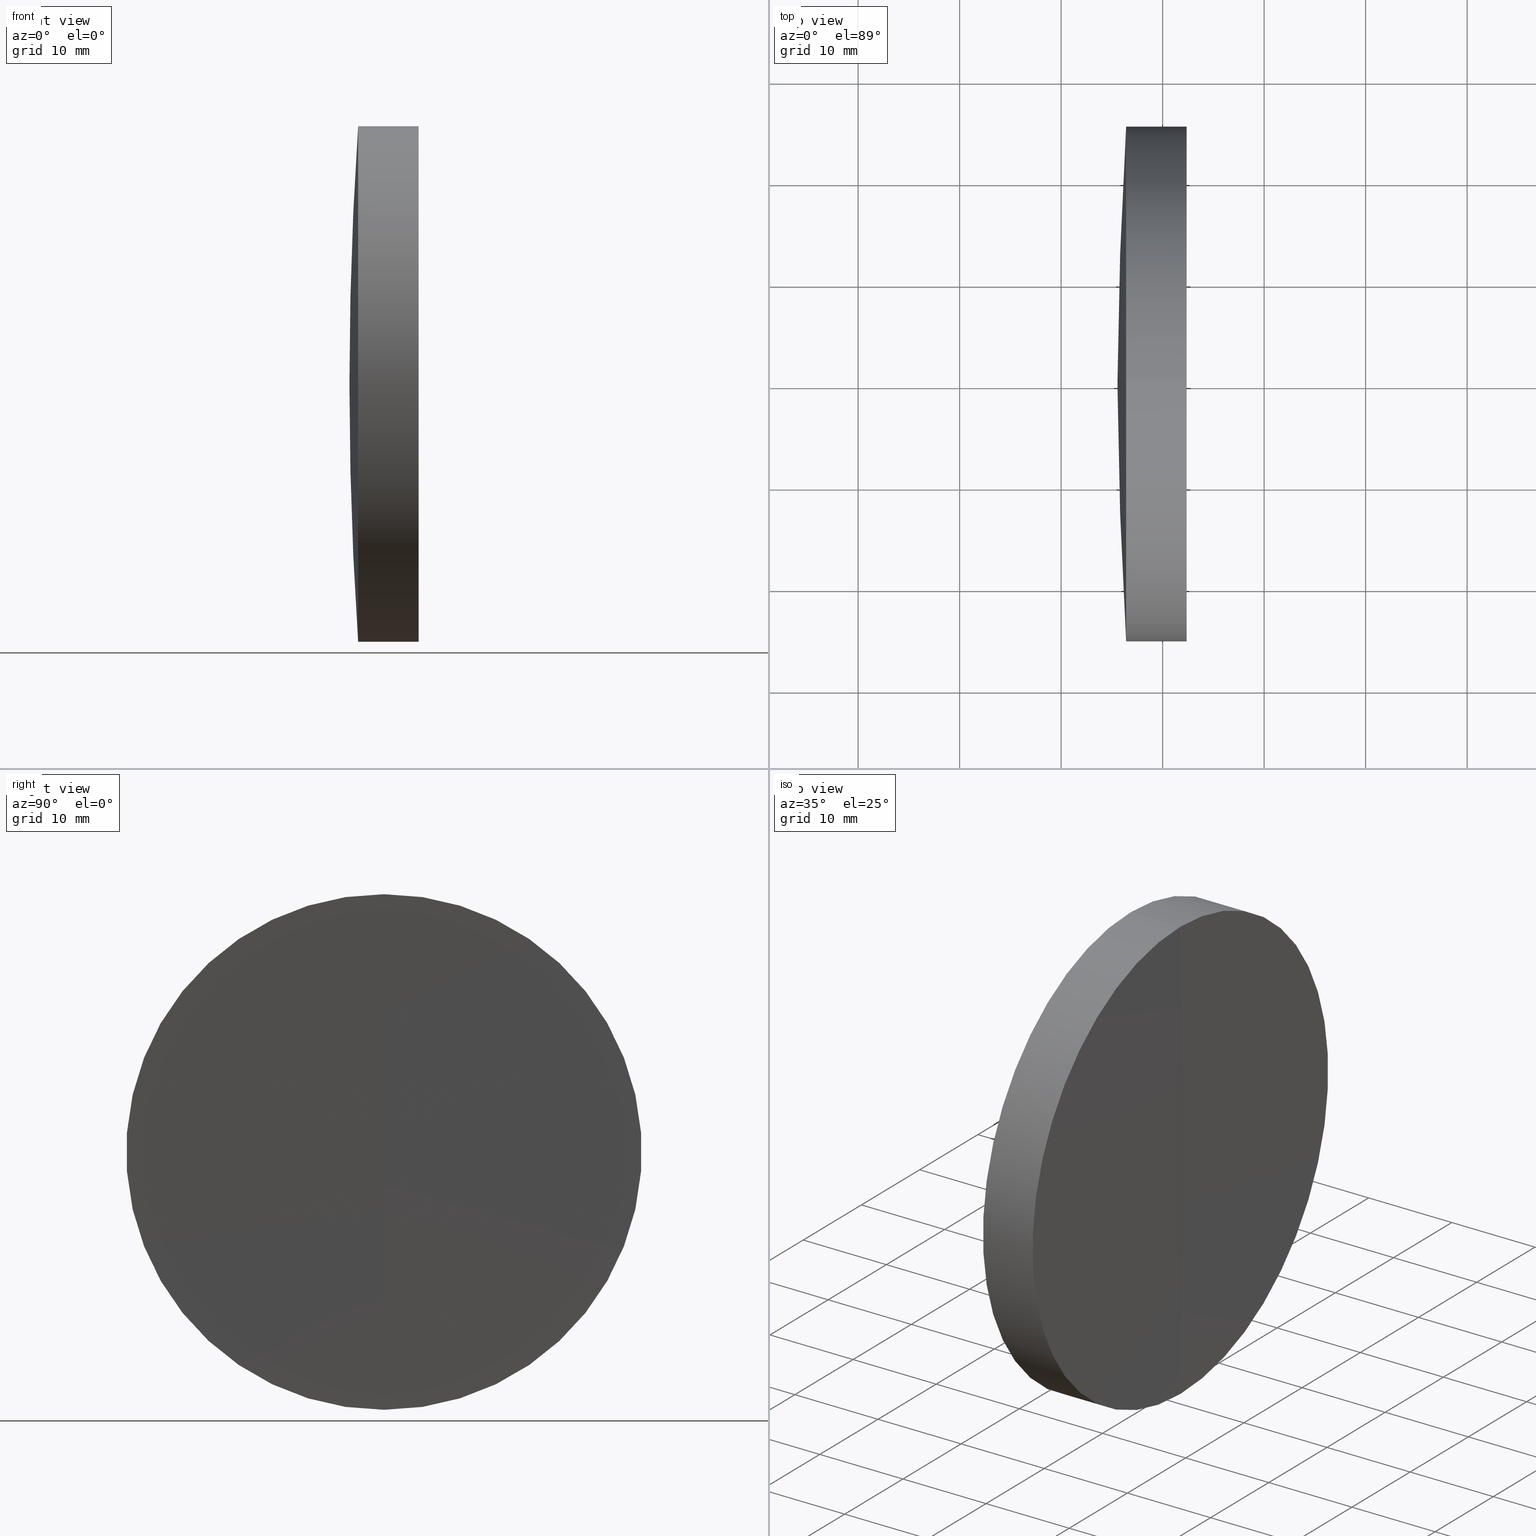
[diagram: canonical four-view strip — front | top / right | iso, engineering-drawing reading convention]
A machine part, canonical four-view strip (front | top / right | iso — engineering-drawing reading convention). The complete STEP part file that produces these views, byte-faithful:
ISO-10303-21;
HEADER;
FILE_DESCRIPTION (( 'STEP AP214' ),
    '1' );
FILE_NAME ('145142.STEP',
    '2019-06-05T05:54:46',
    ( 'user' ),
    ( '΢���й�' ),
    'SwSTEP 2.0',
    'SolidWorks 2016',
    '' );
FILE_SCHEMA (( 'AUTOMOTIVE_DESIGN' ));
ENDSEC;

DATA;
#1 = DIRECTION ( 'NONE',  ( 0.0000000000000000000, 0.0000000000000000000, -1.000000000000000000 ) ) ;
#2 = ORIENTED_EDGE ( 'NONE', *, *, #124, .F. ) ;
#3 = CARTESIAN_POINT ( 'NONE',  ( -402.0212655728769300, 0.0000000000000000000, 0.0000000000000000000 ) ) ;
#4 = AXIS2_PLACEMENT_3D ( 'NONE', #327, #51, #197 ) ;
#5 = ORIENTED_EDGE ( 'NONE', *, *, #267, .F. ) ;
#6 = DIRECTION ( 'NONE',  ( -1.000000000000000000, -0.0000000000000000000, -0.0000000000000000000 ) ) ;
#7 = CARTESIAN_POINT ( 'NONE',  ( -31.36118293043882600, 0.0000000000000000000, 25.39999999999999100 ) ) ;
#8 = CLOSED_SHELL ( 'NONE', ( #291, #273, #315, #86, #226, #343 ) ) ;
#9 = CARTESIAN_POINT ( 'NONE',  ( 2882.249075871704500, 0.0000000000000000000, 0.0000000000000000000 ) ) ;
#10 = CARTESIAN_POINT ( 'NONE',  ( 2882.249075871704500, 0.0000000000000000000, 0.0000000000000000000 ) ) ;
#11 = SPHERICAL_SURFACE ( 'NONE', #277, 291.1000000000000200 ) ;
#12 = AXIS2_PLACEMENT_3D ( 'NONE', #191, #257, #44 ) ;
#13 = DIRECTION ( 'NONE',  ( -1.000000000000000000, -0.0000000000000000000, -0.0000000000000000000 ) ) ;
#14 = CIRCLE ( 'NONE', #275, 25.39999999999983900 ) ;
#15 = CARTESIAN_POINT ( 'NONE',  ( -321.3509241282956700, 0.0000000000000000000, -5.558005932232330100E-015 ) ) ;
#16 = AXIS2_PLACEMENT_3D ( 'NONE', #240, #159, #233 ) ;
#17 =( NAMED_UNIT ( * ) PLANE_ANGLE_UNIT ( ) SI_UNIT ( $, .RADIAN. ) );
#18 = FACE_OUTER_BOUND ( 'NONE', #207, .T. ) ;
#19 = AXIS2_PLACEMENT_3D ( 'NONE', #66, #219, #36 ) ;
#20 = EDGE_CURVE ( 'NONE', #96, #270, #123, .T. ) ;
#21 = VECTOR ( 'NONE', #330, 1000.000000000000000 ) ;
#22 = PRESENTATION_LAYER_ASSIGNMENT (  '', '', ( #29 ) ) ;
#23 = APPLICATION_PROTOCOL_DEFINITION ( 'draft international standard', 'automotive_design', 1998, #39 ) ;
#24 = DIRECTION ( 'NONE',  ( 0.0000000000000000000, 0.0000000000000000000, 1.000000000000000000 ) ) ;
#25 = ORIENTED_EDGE ( 'NONE', *, *, #193, .T. ) ;
#26 =( LENGTH_UNIT ( ) NAMED_UNIT ( * ) SI_UNIT ( .MILLI., .METRE. ) );
#27 = FACE_OUTER_BOUND ( 'NONE', #167, .T. ) ;
#28 = COLOUR_RGB ( '',1.000000000000000000, 1.000000000000000000, 1.000000000000000000 ) ;
#29 = STYLED_ITEM ( 'NONE', ( #309 ), #285 ) ;
#30 = DIRECTION ( 'NONE',  ( 0.0000000000000000000, 0.0000000000000000000, 1.000000000000000000 ) ) ;
#31 = ORIENTED_EDGE ( 'NONE', *, *, #63, .T. ) ;
#32 = FILL_AREA_STYLE ('',( #245 ) ) ;
#33 = CIRCLE ( 'NONE', #201, 376.8000000000000100 ) ;
#34 = AXIS2_PLACEMENT_3D ( 'NONE', #129, #103, #331 ) ;
#35 = DIRECTION ( 'NONE',  ( 0.0000000000000000000, 1.000000000000000000, -0.0000000000000000000 ) ) ;
#36 = DIRECTION ( 'NONE',  ( 0.0000000000000000000, 0.0000000000000000000, 1.000000000000000000 ) ) ;
#37 = MECHANICAL_DESIGN_GEOMETRIC_PRESENTATION_REPRESENTATION (  '', ( #56 ), #246 ) ;
#38 = ORIENTED_EDGE ( 'NONE', *, *, #193, .F. ) ;
#39 = APPLICATION_CONTEXT ( 'automotive_design' ) ;
#40 = ORIENTED_EDGE ( 'NONE', *, *, #101, .T. ) ;
#41 = EDGE_CURVE ( 'NONE', #301, #227, #117, .T. ) ;
#42 = CARTESIAN_POINT ( 'NONE',  ( -31.36118293043887900, 0.0000000000000000000, 0.0000000000000000000 ) ) ;
#43 = DIRECTION ( 'NONE',  ( -1.000000000000000000, -0.0000000000000000000, -0.0000000000000000000 ) ) ;
#44 = DIRECTION ( 'NONE',  ( 0.0000000000000000000, 0.0000000000000000000, 1.000000000000000000 ) ) ;
#45 = ORIENTED_EDGE ( 'NONE', *, *, #298, .F. ) ;
#46 = UNCERTAINTY_MEASURE_WITH_UNIT (LENGTH_MEASURE( 1.000000000000000100E-005 ), #194, 'distance_accuracy_value', 'NONE');
#47 = DIRECTION ( 'NONE',  ( 0.0000000000000000000, -1.000000000000000000, 0.0000000000000000000 ) ) ;
#48 = ADVANCED_FACE ( 'NONE', ( #18 ), #108, .T. ) ;
#49 = AXIS2_PLACEMENT_3D ( 'NONE', #70, #6, #261 ) ;
#50 = CIRCLE ( 'NONE', #19, 25.39999999999999100 ) ;
#51 = DIRECTION ( 'NONE',  ( -1.000000000000000000, -0.0000000000000000000, -0.0000000000000000000 ) ) ;
#52 = FACE_OUTER_BOUND ( 'NONE', #289, .T. ) ;
#53 = ADVANCED_FACE ( 'NONE', ( #138 ), #169, .T. ) ;
#54 = ORIENTED_EDGE ( 'NONE', *, *, #63, .F. ) ;
#55 = CIRCLE ( 'NONE', #251, 291.1000000000000200 ) ;
#56 = STYLED_ITEM ( 'NONE', ( #310 ), #242 ) ;
#57 = VERTEX_POINT ( 'NONE', #280 ) ;
#58 = ORIENTED_EDGE ( 'NONE', *, *, #237, .T. ) ;
#59 = UNCERTAINTY_MEASURE_WITH_UNIT (LENGTH_MEASURE( 1.000000000000000100E-005 ), #79, 'distance_accuracy_value', 'NONE');
#60 = ORIENTED_EDGE ( 'NONE', *, *, #41, .T. ) ;
#61 = CARTESIAN_POINT ( 'NONE',  ( -402.0212655728769300, 0.0000000000000000000, 0.0000000000000000000 ) ) ;
#62 = AXIS2_PLACEMENT_3D ( 'NONE', #188, #77, #303 ) ;
#63 = EDGE_CURVE ( 'NONE', #274, #221, #55, .T. ) ;
#64 = DIRECTION ( 'NONE',  ( 0.0000000000000000000, 0.0000000000000000000, 1.000000000000000000 ) ) ;
#65 =( GEOMETRIC_REPRESENTATION_CONTEXT ( 3 ) GLOBAL_UNCERTAINTY_ASSIGNED_CONTEXT ( ( #59 ) ) GLOBAL_UNIT_ASSIGNED_CONTEXT ( ( #79, #17, #137 ) ) REPRESENTATION_CONTEXT ( 'NONE', 'WORKASPACE' ) );
#66 = CARTESIAN_POINT ( 'NONE',  ( -31.36118293043882600, 0.0000000000000000000, 0.0000000000000000000 ) ) ;
#67 = VERTEX_POINT ( 'NONE', #241 ) ;
#68 = CARTESIAN_POINT ( 'NONE',  ( -321.3509241282956700, 0.0000000000000000000, -5.558005932232330100E-015 ) ) ;
#69 = EDGE_CURVE ( 'NONE', #250, #57, #14, .T. ) ;
#70 = CARTESIAN_POINT ( 'NONE',  ( -151.1284751181453600, 0.0000000000000000000, 0.0000000000000000000 ) ) ;
#71 = CARTESIAN_POINT ( 'NONE',  ( -321.3509241282956700, 0.0000000000000000000, -5.558005932232330100E-015 ) ) ;
#72 = SPHERICAL_SURFACE ( 'NONE', #122, 2910.000000000000000 ) ;
#73 = EDGE_LOOP ( 'NONE', ( #45, #60, #113 ) ) ;
#74 = SURFACE_SIDE_STYLE ('',( #252 ) ) ;
#75 = DIRECTION ( 'NONE',  ( -0.0000000000000000000, -1.000000000000000000, -0.0000000000000000000 ) ) ;
#76 = UNCERTAINTY_MEASURE_WITH_UNIT (LENGTH_MEASURE( 1.000000000000000100E-005 ), #297, 'distance_accuracy_value', 'NONE');
#77 = DIRECTION ( 'NONE',  ( 0.0000000000000000000, -1.000000000000000000, 0.0000000000000000000 ) ) ;
#78 = AXIS2_PLACEMENT_3D ( 'NONE', #68, #304, #111 ) ;
#79 =( LENGTH_UNIT ( ) NAMED_UNIT ( * ) SI_UNIT ( .MILLI., .METRE. ) );
#80 = ADVANCED_FACE ( 'NONE', ( #160 ), #11, .T. ) ;
#81 = EDGE_CURVE ( 'NONE', #250, #93, #184, .T. ) ;
#82 = DIRECTION ( 'NONE',  ( 0.0000000000000000000, 0.0000000000000000000, 1.000000000000000000 ) ) ;
#83 = CIRCLE ( 'NONE', #228, 25.39999999999983900 ) ;
#84 = VERTEX_POINT ( 'NONE', #263 ) ;
#85 = DIRECTION ( 'NONE',  ( 0.0000000000000000000, 0.0000000000000000000, 1.000000000000000000 ) ) ;
#86 = ADVANCED_FACE ( 'NONE', ( #115 ), #147, .F. ) ;
#87 = AXIS2_PLACEMENT_3D ( 'NONE', #319, #322, #85 ) ;
#88 = AXIS2_PLACEMENT_3D ( 'NONE', #109, #336, #292 ) ;
#89 = ORIENTED_EDGE ( 'NONE', *, *, #112, .T. ) ;
#90 = ORIENTED_EDGE ( 'NONE', *, *, #237, .F. ) ;
#91 = PRODUCT ( '145142', '145142', '', ( #205 ) ) ;
#92 = EDGE_LOOP ( 'NONE', ( #90, #178, #175, #165 ) ) ;
#93 = VERTEX_POINT ( 'NONE', #337 ) ;
#94 = CARTESIAN_POINT ( 'NONE',  ( -33.59384532777775700, 3.110602869834250000E-015, -25.39999999999978500 ) ) ;
#95 = DIRECTION ( 'NONE',  ( 0.0000000000000000000, 1.000000000000000000, 0.0000000000000000000 ) ) ;
#96 = VERTEX_POINT ( 'NONE', #314 ) ;
#97 = CARTESIAN_POINT ( 'NONE',  ( 342.3490758717043700, 0.0000000000000000000, -7.663786165743663600E-015 ) ) ;
#98 = DIRECTION ( 'NONE',  ( 0.0000000000000000000, -1.224646799147353200E-016, 1.000000000000000000 ) ) ;
#99 = PRESENTATION_LAYER_ASSIGNMENT (  '', '', ( #56 ) ) ;
#100 = SURFACE_STYLE_USAGE ( .BOTH. , #74 ) ;
#101 = EDGE_CURVE ( 'NONE', #274, #143, #157, .T. ) ;
#102 = EDGE_LOOP ( 'NONE', ( #54, #40, #332 ) ) ;
#103 = DIRECTION ( 'NONE',  ( 0.0000000000000000000, -1.000000000000000000, -1.224646799147353200E-016 ) ) ;
#104 = CARTESIAN_POINT ( 'NONE',  ( -151.1284751181453600, 0.0000000000000000000, 25.39999999999991700 ) ) ;
#105 = SPHERICAL_SURFACE ( 'NONE', #345, 2910.000000000000000 ) ;
#106 = AXIS2_PLACEMENT_3D ( 'NONE', #269, #216, #82 ) ;
#107 = FACE_OUTER_BOUND ( 'NONE', #92, .T. ) ;
#108 = SPHERICAL_SURFACE ( 'NONE', #16, 376.8000000000000100 ) ;
#109 = CARTESIAN_POINT ( 'NONE',  ( -321.3509241282956700, 0.0000000000000000000, -5.558005932232330100E-015 ) ) ;
#110 = AXIS2_PLACEMENT_3D ( 'NONE', #61, #243, #236 ) ;
#111 = DIRECTION ( 'NONE',  ( 0.0000000000000000000, 0.0000000000000000000, -1.000000000000000000 ) ) ;
#112 = EDGE_CURVE ( 'NONE', #221, #301, #244, .T. ) ;
#113 = ORIENTED_EDGE ( 'NONE', *, *, #247, .T. ) ;
#114 = CARTESIAN_POINT ( 'NONE',  ( 2882.249075871704500, 0.0000000000000000000, 0.0000000000000000000 ) ) ;
#115 = FACE_OUTER_BOUND ( 'NONE', #238, .T. ) ;
#116 = DIRECTION ( 'NONE',  ( 0.0000000000000000000, 0.0000000000000000000, 1.000000000000000000 ) ) ;
#117 = CIRCLE ( 'NONE', #146, 25.39999999999999100 ) ;
#118 = CARTESIAN_POINT ( 'NONE',  ( -33.59384532777775700, 0.0000000000000000000, 25.39999999999977800 ) ) ;
#119 = ORIENTED_EDGE ( 'NONE', *, *, #140, .T. ) ;
#120 = CIRCLE ( 'NONE', #78, 291.0999999999999700 ) ;
#121 = VECTOR ( 'NONE', #131, 1000.000000000000000 ) ;
#122 = AXIS2_PLACEMENT_3D ( 'NONE', #9, #75, #324 ) ;
#123 = CIRCLE ( 'NONE', #255, 25.39999999999998800 ) ;
#124 = EDGE_CURVE ( 'NONE', #143, #227, #339, .T. ) ;
#125 = ADVANCED_FACE ( 'NONE', ( #27 ), #335, .T. ) ;
#126 = SHAPE_DEFINITION_REPRESENTATION ( #224, #161 ) ;
#127 = DIRECTION ( 'NONE',  ( 1.000000000000000000, 0.0000000000000000000, 0.0000000000000000000 ) ) ;
#128 = LINE ( 'NONE', #307, #121 ) ;
#129 = CARTESIAN_POINT ( 'NONE',  ( 2882.249075871704500, 0.0000000000000000000, 0.0000000000000000000 ) ) ;
#130 = ORIENTED_EDGE ( 'NONE', *, *, #41, .F. ) ;
#131 = DIRECTION ( 'NONE',  ( -1.000000000000000000, -0.0000000000000000000, -0.0000000000000000000 ) ) ;
#132 =( NAMED_UNIT ( * ) SI_UNIT ( $, .STERADIAN. ) SOLID_ANGLE_UNIT ( ) );
#133 = EDGE_LOOP ( 'NONE', ( #206, #89, #149, #2 ) ) ;
#134 = CARTESIAN_POINT ( 'NONE',  ( -321.3509241282956700, 0.0000000000000000000, -5.558005932232330100E-015 ) ) ;
#135 = STYLED_ITEM ( 'NONE', ( #313 ), #161 ) ;
#136 = CARTESIAN_POINT ( 'NONE',  ( -27.64006978316091400, 0.0000000000000000000, 0.0000000000000000000 ) ) ;
#137 =( NAMED_UNIT ( * ) SI_UNIT ( $, .STERADIAN. ) SOLID_ANGLE_UNIT ( ) );
#138 = FACE_OUTER_BOUND ( 'NONE', #288, .T. ) ;
#139 = DIRECTION ( 'NONE',  ( 0.0000000000000000000, 0.0000000000000000000, 1.000000000000000000 ) ) ;
#140 = EDGE_CURVE ( 'NONE', #270, #96, #346, .T. ) ;
#141 = FACE_OUTER_BOUND ( 'NONE', #73, .T. ) ;
#142 = CARTESIAN_POINT ( 'NONE',  ( -31.36118293043882600, 3.110602869834276100E-015, -25.39999999999999100 ) ) ;
#143 = VERTEX_POINT ( 'NONE', #7 ) ;
#144 = DIRECTION ( 'NONE',  ( -1.000000000000000000, -0.0000000000000000000, -0.0000000000000000000 ) ) ;
#145 = MECHANICAL_DESIGN_GEOMETRIC_PRESENTATION_REPRESENTATION (  '', ( #135 ), #171 ) ;
#146 = AXIS2_PLACEMENT_3D ( 'NONE', #284, #214, #299 ) ;
#147 = SPHERICAL_SURFACE ( 'NONE', #12, 291.0999999999999700 ) ;
#148 = DIRECTION ( 'NONE',  ( 0.0000000000000000000, 1.000000000000000000, 0.0000000000000000000 ) ) ;
#149 = ORIENTED_EDGE ( 'NONE', *, *, #338, .F. ) ;
#150 = ORIENTED_EDGE ( 'NONE', *, *, #112, .F. ) ;
#151 = PRESENTATION_LAYER_ASSIGNMENT (  '', '', ( #135 ) ) ;
#152 = ORIENTED_EDGE ( 'NONE', *, *, #172, .T. ) ;
#153 = ADVANCED_FACE ( 'NONE', ( #141 ), #256, .T. ) ;
#154 = DIRECTION ( 'NONE',  ( 0.0000000000000000000, 1.000000000000000000, 0.0000000000000000000 ) ) ;
#155 = ORIENTED_EDGE ( 'NONE', *, *, #81, .F. ) ;
#156 =( NAMED_UNIT ( * ) SI_UNIT ( $, .STERADIAN. ) SOLID_ANGLE_UNIT ( ) );
#157 = CIRCLE ( 'NONE', #187, 291.1000000000000200 ) ;
#158 = ORIENTED_EDGE ( 'NONE', *, *, #247, .F. ) ;
#159 = DIRECTION ( 'NONE',  ( 0.0000000000000000000, 1.000000000000000000, 0.0000000000000000000 ) ) ;
#160 = FACE_OUTER_BOUND ( 'NONE', #102, .T. ) ;
#161 = ADVANCED_BREP_SHAPE_REPRESENTATION ( '145142', ( #242, #285, #204 ), #65 ) ;
#162 = APPLICATION_CONTEXT ( 'automotive_design' ) ;
#163 = ORIENTED_EDGE ( 'NONE', *, *, #20, .T. ) ;
#164 = VECTOR ( 'NONE', #144, 1000.000000000000000 ) ;
#165 = ORIENTED_EDGE ( 'NONE', *, *, #20, .F. ) ;
#166 = SURFACE_SIDE_STYLE ('',( #268 ) ) ;
#167 = EDGE_LOOP ( 'NONE', ( #150, #152, #213, #130 ) ) ;
#168 = SURFACE_STYLE_FILL_AREA ( #32 ) ;
#169 = SPHERICAL_SURFACE ( 'NONE', #88, 291.1000000000000200 ) ;
#170 = DIRECTION ( 'NONE',  ( 0.0000000000000000000, 0.0000000000000000000, 1.000000000000000000 ) ) ;
#171 =( GEOMETRIC_REPRESENTATION_CONTEXT ( 3 ) GLOBAL_UNCERTAINTY_ASSIGNED_CONTEXT ( ( #318 ) ) GLOBAL_UNIT_ASSIGNED_CONTEXT ( ( #26, #293, #156 ) ) REPRESENTATION_CONTEXT ( 'NONE', 'WORKASPACE' ) );
#172 = EDGE_CURVE ( 'NONE', #221, #143, #50, .T. ) ;
#173 = CIRCLE ( 'NONE', #62, 376.8000000000000100 ) ;
#174 = ORIENTED_EDGE ( 'NONE', *, *, #338, .T. ) ;
#175 = ORIENTED_EDGE ( 'NONE', *, *, #267, .T. ) ;
#176 = CIRCLE ( 'NONE', #283, 2910.000000000000000 ) ;
#177 = ORIENTED_EDGE ( 'NONE', *, *, #287, .F. ) ;
#178 = ORIENTED_EDGE ( 'NONE', *, *, #287, .T. ) ;
#179 =( GEOMETRIC_REPRESENTATION_CONTEXT ( 3 ) GLOBAL_UNCERTAINTY_ASSIGNED_CONTEXT ( ( #46 ) ) GLOBAL_UNIT_ASSIGNED_CONTEXT ( ( #194, #302, #328 ) ) REPRESENTATION_CONTEXT ( 'NONE', 'WORKASPACE' ) );
#180 = ADVANCED_FACE ( 'NONE', ( #203 ), #325, .T. ) ;
#181 = ORIENTED_EDGE ( 'NONE', *, *, #69, .F. ) ;
#182 = CARTESIAN_POINT ( 'NONE',  ( -31.36118293043887900, 0.0000000000000000000, 25.40000000000004800 ) ) ;
#183 = PRODUCT_DEFINITION ( 'δ֪', '', #215, #189 ) ;
#184 = CIRCLE ( 'NONE', #34, 2910.000000000000000 ) ;
#185 = DIRECTION ( 'NONE',  ( 0.0000000000000000000, 0.0000000000000000000, 1.000000000000000000 ) ) ;
#186 = CARTESIAN_POINT ( 'NONE',  ( -402.0212655728769300, 0.0000000000000000000, 25.39999999999999100 ) ) ;
#187 = AXIS2_PLACEMENT_3D ( 'NONE', #71, #47, #1 ) ;
#188 = CARTESIAN_POINT ( 'NONE',  ( 342.3490758717043700, 0.0000000000000000000, -7.663786165743663600E-015 ) ) ;
#189 = PRODUCT_DEFINITION_CONTEXT ( 'detailed design', #39, 'design' ) ;
#190 = CYLINDRICAL_SURFACE ( 'NONE', #106, 25.39999999999991700 ) ;
#191 = CARTESIAN_POINT ( 'NONE',  ( -321.3509241282956700, 0.0000000000000000000, -5.558005932232330100E-015 ) ) ;
#192 = COLOUR_RGB ( '',1.000000000000000000, 1.000000000000000000, 1.000000000000000000 ) ;
#193 = EDGE_CURVE ( 'NONE', #57, #93, #176, .T. ) ;
#194 =( LENGTH_UNIT ( ) NAMED_UNIT ( * ) SI_UNIT ( .MILLI., .METRE. ) );
#195 = SURFACE_STYLE_USAGE ( .BOTH. , #166 ) ;
#196 = EDGE_LOOP ( 'NONE', ( #155, #177, #25 ) ) ;
#197 = DIRECTION ( 'NONE',  ( 0.0000000000000000000, 0.0000000000000000000, 1.000000000000000000 ) ) ;
#198 = DIRECTION ( 'NONE',  ( -1.000000000000000000, -0.0000000000000000000, -0.0000000000000000000 ) ) ;
#199 = CARTESIAN_POINT ( 'NONE',  ( -321.3509241282956700, 0.0000000000000000000, -5.558005932232330100E-015 ) ) ;
#200 = DIRECTION ( 'NONE',  ( -0.0000000000000000000, 1.000000000000000000, 1.224646799147353200E-016 ) ) ;
#201 = AXIS2_PLACEMENT_3D ( 'NONE', #97, #259, #272 ) ;
#202 = DIRECTION ( 'NONE',  ( -1.000000000000000000, -0.0000000000000000000, -0.0000000000000000000 ) ) ;
#203 = FACE_OUTER_BOUND ( 'NONE', #133, .T. ) ;
#204 = AXIS2_PLACEMENT_3D ( 'NONE', #265, #24, #127 ) ;
#205 = PRODUCT_CONTEXT ( 'NONE', #162, 'mechanical' ) ;
#206 = ORIENTED_EDGE ( 'NONE', *, *, #323, .T. ) ;
#207 = EDGE_LOOP ( 'NONE', ( #174, #223, #158 ) ) ;
#208 = FACE_OUTER_BOUND ( 'NONE', #334, .T. ) ;
#209 = PRODUCT_RELATED_PRODUCT_CATEGORY ( 'part', '', ( #91 ) ) ;
#210 = ORIENTED_EDGE ( 'NONE', *, *, #217, .T. ) ;
#211 = SPHERICAL_SURFACE ( 'NONE', #235, 291.0999999999999700 ) ;
#212 = CARTESIAN_POINT ( 'NONE',  ( -27.64006978316091400, 0.0000000000000000000, 25.39999999999983900 ) ) ;
#213 = ORIENTED_EDGE ( 'NONE', *, *, #124, .T. ) ;
#214 = DIRECTION ( 'NONE',  ( -1.000000000000000000, -0.0000000000000000000, -0.0000000000000000000 ) ) ;
#215 = PRODUCT_DEFINITION_FORMATION_WITH_SPECIFIED_SOURCE ( '�κ�', '', #91, .NOT_KNOWN. ) ;
#216 = DIRECTION ( 'NONE',  ( -1.000000000000000000, -0.0000000000000000000, -0.0000000000000000000 ) ) ;
#217 = EDGE_CURVE ( 'NONE', #67, #96, #264, .T. ) ;
#218 = CARTESIAN_POINT ( 'NONE',  ( 342.3490758717043700, 0.0000000000000000000, -7.663786165743663600E-015 ) ) ;
#219 = DIRECTION ( 'NONE',  ( -1.000000000000000000, -0.0000000000000000000, -0.0000000000000000000 ) ) ;
#220 = CARTESIAN_POINT ( 'NONE',  ( -31.36118293043882600, 0.0000000000000000000, 0.0000000000000000000 ) ) ;
#221 = VERTEX_POINT ( 'NONE', #142 ) ;
#222 = DIRECTION ( 'NONE',  ( 0.0000000000000000000, 0.0000000000000000000, 1.000000000000000000 ) ) ;
#223 = ORIENTED_EDGE ( 'NONE', *, *, #298, .T. ) ;
#224 = PRODUCT_DEFINITION_SHAPE ( 'NONE', 'NONE',  #183 ) ;
#225 = ORIENTED_EDGE ( 'NONE', *, *, #69, .T. ) ;
#226 = ADVANCED_FACE ( 'NONE', ( #107 ), #253, .T. ) ;
#227 = VERTEX_POINT ( 'NONE', #118 ) ;
#228 = AXIS2_PLACEMENT_3D ( 'NONE', #341, #198, #234 ) ;
#229 = ORIENTED_EDGE ( 'NONE', *, *, #101, .F. ) ;
#230 = ORIENTED_EDGE ( 'NONE', *, *, #81, .T. ) ;
#231 = DIRECTION ( 'NONE',  ( -0.0000000000000000000, 1.000000000000000000, 1.224646799147353200E-016 ) ) ;
#232 = FACE_OUTER_BOUND ( 'NONE', #196, .T. ) ;
#233 = DIRECTION ( 'NONE',  ( 0.0000000000000000000, 0.0000000000000000000, 1.000000000000000000 ) ) ;
#234 = DIRECTION ( 'NONE',  ( 0.0000000000000000000, 0.0000000000000000000, 1.000000000000000000 ) ) ;
#235 = AXIS2_PLACEMENT_3D ( 'NONE', #294, #154, #64 ) ;
#236 = DIRECTION ( 'NONE',  ( 0.0000000000000000000, 0.0000000000000000000, 1.000000000000000000 ) ) ;
#237 = EDGE_CURVE ( 'NONE', #57, #96, #128, .T. ) ;
#238 = EDGE_LOOP ( 'NONE', ( #321, #326, #119 ) ) ;
#239 =( NAMED_UNIT ( * ) PLANE_ANGLE_UNIT ( ) SI_UNIT ( $, .RADIAN. ) );
#240 = CARTESIAN_POINT ( 'NONE',  ( 342.3490758717043700, 0.0000000000000000000, -7.663786165743663600E-015 ) ) ;
#241 = CARTESIAN_POINT ( 'NONE',  ( -30.25092412829571800, 0.0000000000000000000, 1.226672822935739400E-014 ) ) ;
#242 = MANIFOLD_SOLID_BREP ( '��ת1', #276 ) ;
#243 = DIRECTION ( 'NONE',  ( -1.000000000000000000, -0.0000000000000000000, -0.0000000000000000000 ) ) ;
#244 = LINE ( 'NONE', #311, #266 ) ;
#245 = FILL_AREA_STYLE_COLOUR ( '', #192 ) ;
#246 =( GEOMETRIC_REPRESENTATION_CONTEXT ( 3 ) GLOBAL_UNCERTAINTY_ASSIGNED_CONTEXT ( ( #76 ) ) GLOBAL_UNIT_ASSIGNED_CONTEXT ( ( #297, #239, #132 ) ) REPRESENTATION_CONTEXT ( 'NONE', 'WORKASPACE' ) );
#247 = EDGE_CURVE ( 'NONE', #227, #84, #173, .T. ) ;
#248 = FILL_AREA_STYLE ('',( #249 ) ) ;
#249 = FILL_AREA_STYLE_COLOUR ( '', #306 ) ;
#250 = VERTEX_POINT ( 'NONE', #212 ) ;
#251 = AXIS2_PLACEMENT_3D ( 'NONE', #134, #231, #260 ) ;
#252 = SURFACE_STYLE_FILL_AREA ( #282 ) ;
#253 = CYLINDRICAL_SURFACE ( 'NONE', #49, 25.39999999999991700 ) ;
#254 = DIRECTION ( 'NONE',  ( -1.000000000000000000, -0.0000000000000000000, -0.0000000000000000000 ) ) ;
#255 = AXIS2_PLACEMENT_3D ( 'NONE', #42, #347, #30 ) ;
#256 = SPHERICAL_SURFACE ( 'NONE', #312, 376.8000000000000100 ) ;
#257 = DIRECTION ( 'NONE',  ( 0.0000000000000000000, 1.000000000000000000, 0.0000000000000000000 ) ) ;
#258 = FACE_OUTER_BOUND ( 'NONE', #296, .T. ) ;
#259 = DIRECTION ( 'NONE',  ( -0.0000000000000000000, 1.000000000000000000, 1.224646799147353200E-016 ) ) ;
#260 = DIRECTION ( 'NONE',  ( 0.0000000000000000000, -1.224646799147353200E-016, 1.000000000000000000 ) ) ;
#261 = DIRECTION ( 'NONE',  ( 0.0000000000000000000, 0.0000000000000000000, 1.000000000000000000 ) ) ;
#262 = APPLICATION_PROTOCOL_DEFINITION ( 'draft international standard', 'automotive_design', 1998, #162 ) ;
#263 = CARTESIAN_POINT ( 'NONE',  ( -34.45092412829564700, 0.0000000000000000000, 1.540855953019247200E-014 ) ) ;
#264 = CIRCLE ( 'NONE', #305, 291.0999999999999700 ) ;
#265 = CARTESIAN_POINT ( 'NONE',  ( 0.0000000000000000000, 0.0000000000000000000, 0.0000000000000000000 ) ) ;
#266 = VECTOR ( 'NONE', #254, 1000.000000000000000 ) ;
#267 = EDGE_CURVE ( 'NONE', #250, #270, #295, .T. ) ;
#268 = SURFACE_STYLE_FILL_AREA ( #248 ) ;
#269 = CARTESIAN_POINT ( 'NONE',  ( -151.1284751181453600, 0.0000000000000000000, 0.0000000000000000000 ) ) ;
#270 = VERTEX_POINT ( 'NONE', #182 ) ;
#271 = FILL_AREA_STYLE_COLOUR ( '', #28 ) ;
#272 = DIRECTION ( 'NONE',  ( 0.0000000000000000000, -1.224646799147353200E-016, 1.000000000000000000 ) ) ;
#273 = ADVANCED_FACE ( 'NONE', ( #52 ), #190, .T. ) ;
#274 = VERTEX_POINT ( 'NONE', #308 ) ;
#275 = AXIS2_PLACEMENT_3D ( 'NONE', #136, #202, #185 ) ;
#276 = CLOSED_SHELL ( 'NONE', ( #53, #180, #48, #153, #125, #80 ) ) ;
#277 = AXIS2_PLACEMENT_3D ( 'NONE', #199, #148, #170 ) ;
#278 = DIRECTION ( 'NONE',  ( 0.0000000000000000000, 0.0000000000000000000, -1.000000000000000000 ) ) ;
#279 = ORIENTED_EDGE ( 'NONE', *, *, #323, .F. ) ;
#280 = CARTESIAN_POINT ( 'NONE',  ( -27.64006978316091400, 3.110602869834261500E-015, -25.39999999999983900 ) ) ;
#281 = DIRECTION ( 'NONE',  ( -0.0000000000000000000, -1.000000000000000000, -0.0000000000000000000 ) ) ;
#282 = FILL_AREA_STYLE ('',( #271 ) ) ;
#283 = AXIS2_PLACEMENT_3D ( 'NONE', #10, #35, #116 ) ;
#284 = CARTESIAN_POINT ( 'NONE',  ( -33.59384532777775700, 0.0000000000000000000, 0.0000000000000000000 ) ) ;
#285 = MANIFOLD_SOLID_BREP ( '��ת3', #8 ) ;
#286 = CIRCLE ( 'NONE', #87, 25.39999999999999100 ) ;
#287 = EDGE_CURVE ( 'NONE', #57, #250, #83, .T. ) ;
#288 = EDGE_LOOP ( 'NONE', ( #229, #31, #279 ) ) ;
#289 = EDGE_LOOP ( 'NONE', ( #225, #58, #344, #5 ) ) ;
#290 = SURFACE_SIDE_STYLE ('',( #168 ) ) ;
#291 = ADVANCED_FACE ( 'NONE', ( #258 ), #105, .F. ) ;
#292 = DIRECTION ( 'NONE',  ( 0.0000000000000000000, 0.0000000000000000000, 1.000000000000000000 ) ) ;
#293 =( NAMED_UNIT ( * ) PLANE_ANGLE_UNIT ( ) SI_UNIT ( $, .RADIAN. ) );
#294 = CARTESIAN_POINT ( 'NONE',  ( -321.3509241282956700, 0.0000000000000000000, -5.558005932232330100E-015 ) ) ;
#295 = LINE ( 'NONE', #104, #164 ) ;
#296 = EDGE_LOOP ( 'NONE', ( #181, #230, #38 ) ) ;
#297 =( LENGTH_UNIT ( ) NAMED_UNIT ( * ) SI_UNIT ( .MILLI., .METRE. ) );
#298 = EDGE_CURVE ( 'NONE', #301, #84, #33, .T. ) ;
#299 = DIRECTION ( 'NONE',  ( 0.0000000000000000000, 0.0000000000000000000, 1.000000000000000000 ) ) ;
#300 = ORIENTED_EDGE ( 'NONE', *, *, #340, .F. ) ;
#301 = VERTEX_POINT ( 'NONE', #94 ) ;
#302 =( NAMED_UNIT ( * ) PLANE_ANGLE_UNIT ( ) SI_UNIT ( $, .RADIAN. ) );
#303 = DIRECTION ( 'NONE',  ( 0.0000000000000000000, 0.0000000000000000000, -1.000000000000000000 ) ) ;
#304 = DIRECTION ( 'NONE',  ( 0.0000000000000000000, -1.000000000000000000, 0.0000000000000000000 ) ) ;
#305 = AXIS2_PLACEMENT_3D ( 'NONE', #15, #200, #98 ) ;
#306 = COLOUR_RGB ( '',1.000000000000000000, 1.000000000000000000, 1.000000000000000000 ) ;
#307 = CARTESIAN_POINT ( 'NONE',  ( -151.1284751181453600, 3.110602869834266600E-015, -25.39999999999991700 ) ) ;
#308 = CARTESIAN_POINT ( 'NONE',  ( -30.25092412829566500, 0.0000000000000000000, 1.226672822935739700E-014 ) ) ;
#309 = PRESENTATION_STYLE_ASSIGNMENT (( #100 ) ) ;
#310 = PRESENTATION_STYLE_ASSIGNMENT (( #333 ) ) ;
#311 = CARTESIAN_POINT ( 'NONE',  ( -402.0212655728769300, 3.110602869834276100E-015, -25.39999999999999100 ) ) ;
#312 = AXIS2_PLACEMENT_3D ( 'NONE', #218, #95, #316 ) ;
#313 = PRESENTATION_STYLE_ASSIGNMENT (( #195 ) ) ;
#314 = CARTESIAN_POINT ( 'NONE',  ( -31.36118293043887900, 3.110602869834283200E-015, -25.40000000000005500 ) ) ;
#315 = ADVANCED_FACE ( 'NONE', ( #208 ), #211, .F. ) ;
#316 = DIRECTION ( 'NONE',  ( 0.0000000000000000000, 0.0000000000000000000, 1.000000000000000000 ) ) ;
#317 = AXIS2_PLACEMENT_3D ( 'NONE', #220, #43, #139 ) ;
#318 = UNCERTAINTY_MEASURE_WITH_UNIT (LENGTH_MEASURE( 1.000000000000000100E-005 ), #26, 'distance_accuracy_value', 'NONE');
#319 = CARTESIAN_POINT ( 'NONE',  ( -33.59384532777775700, 0.0000000000000000000, 0.0000000000000000000 ) ) ;
#320 = AXIS2_PLACEMENT_3D ( 'NONE', #3, #13, #222 ) ;
#321 = ORIENTED_EDGE ( 'NONE', *, *, #217, .F. ) ;
#322 = DIRECTION ( 'NONE',  ( -1.000000000000000000, -0.0000000000000000000, -0.0000000000000000000 ) ) ;
#323 = EDGE_CURVE ( 'NONE', #143, #221, #342, .T. ) ;
#324 = DIRECTION ( 'NONE',  ( 0.0000000000000000000, 0.0000000000000000000, -1.000000000000000000 ) ) ;
#325 = CYLINDRICAL_SURFACE ( 'NONE', #110, 25.39999999999999100 ) ;
#326 = ORIENTED_EDGE ( 'NONE', *, *, #340, .T. ) ;
#327 = CARTESIAN_POINT ( 'NONE',  ( -31.36118293043887900, 0.0000000000000000000, 0.0000000000000000000 ) ) ;
#328 =( NAMED_UNIT ( * ) SI_UNIT ( $, .STERADIAN. ) SOLID_ANGLE_UNIT ( ) );
#329 = MECHANICAL_DESIGN_GEOMETRIC_PRESENTATION_REPRESENTATION (  '', ( #29 ), #179 ) ;
#330 = DIRECTION ( 'NONE',  ( -1.000000000000000000, -0.0000000000000000000, -0.0000000000000000000 ) ) ;
#331 = DIRECTION ( 'NONE',  ( 0.0000000000000000000, 1.224646799147353200E-016, -1.000000000000000000 ) ) ;
#332 = ORIENTED_EDGE ( 'NONE', *, *, #172, .F. ) ;
#333 = SURFACE_STYLE_USAGE ( .BOTH. , #290 ) ;
#334 = EDGE_LOOP ( 'NONE', ( #300, #210, #163 ) ) ;
#335 = CYLINDRICAL_SURFACE ( 'NONE', #320, 25.39999999999999100 ) ;
#336 = DIRECTION ( 'NONE',  ( 0.0000000000000000000, 1.000000000000000000, 0.0000000000000000000 ) ) ;
#337 = CARTESIAN_POINT ( 'NONE',  ( -27.75092412829582900, 0.0000000000000000000, -1.781861092759398900E-013 ) ) ;
#338 = EDGE_CURVE ( 'NONE', #227, #301, #286, .T. ) ;
#339 = LINE ( 'NONE', #186, #21 ) ;
#340 = EDGE_CURVE ( 'NONE', #67, #270, #120, .T. ) ;
#341 = CARTESIAN_POINT ( 'NONE',  ( -27.64006978316091400, 0.0000000000000000000, 0.0000000000000000000 ) ) ;
#342 = CIRCLE ( 'NONE', #317, 25.39999999999999100 ) ;
#343 = ADVANCED_FACE ( 'NONE', ( #232 ), #72, .F. ) ;
#344 = ORIENTED_EDGE ( 'NONE', *, *, #140, .F. ) ;
#345 = AXIS2_PLACEMENT_3D ( 'NONE', #114, #281, #278 ) ;
#346 = CIRCLE ( 'NONE', #4, 25.39999999999998800 ) ;
#347 = DIRECTION ( 'NONE',  ( -1.000000000000000000, -0.0000000000000000000, -0.0000000000000000000 ) ) ;
ENDSEC;
END-ISO-10303-21;
